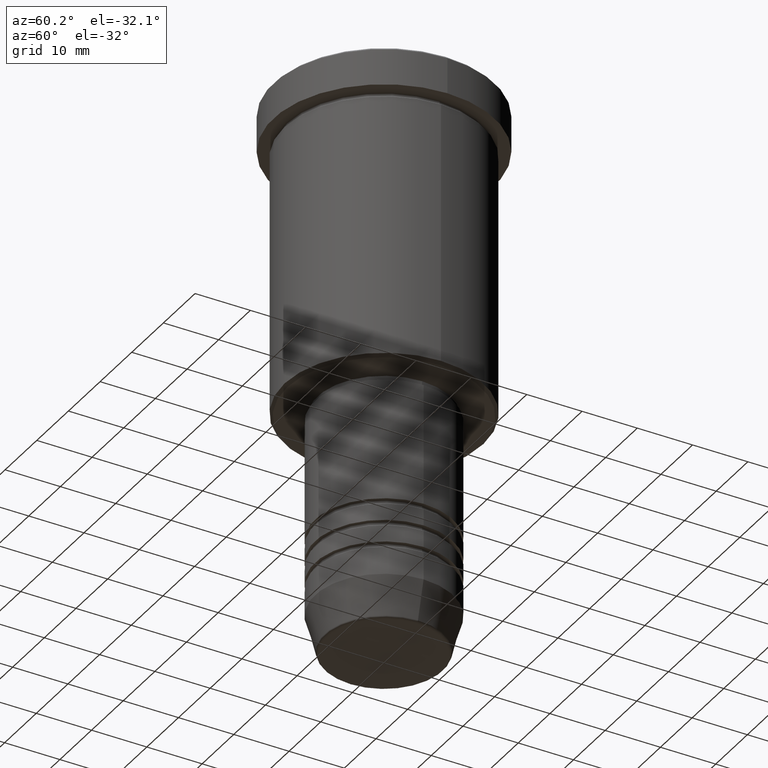
[diagram: clean part render]
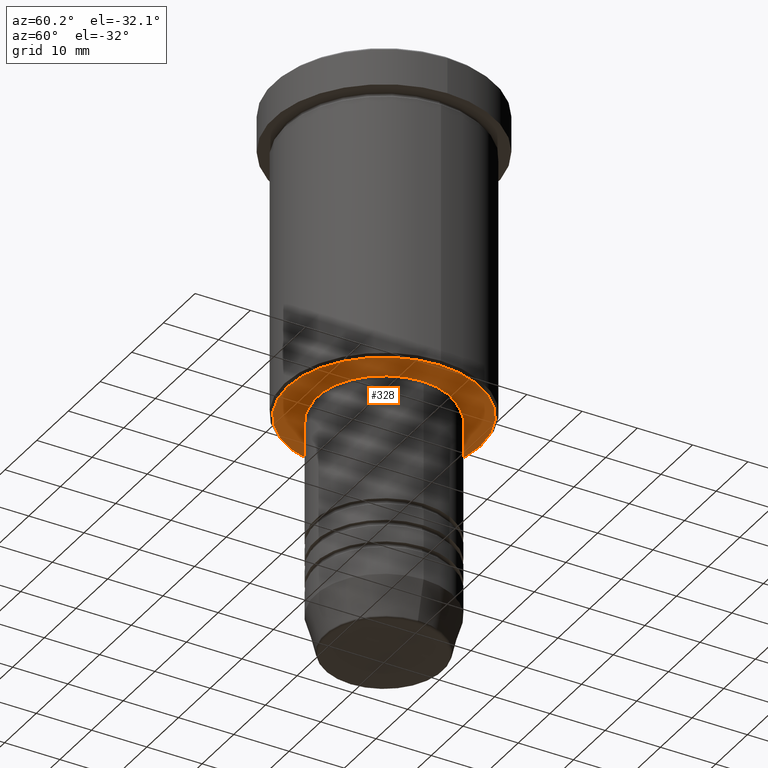
[diagram: same view with one face highlighted and labeled with its STEP entity id]
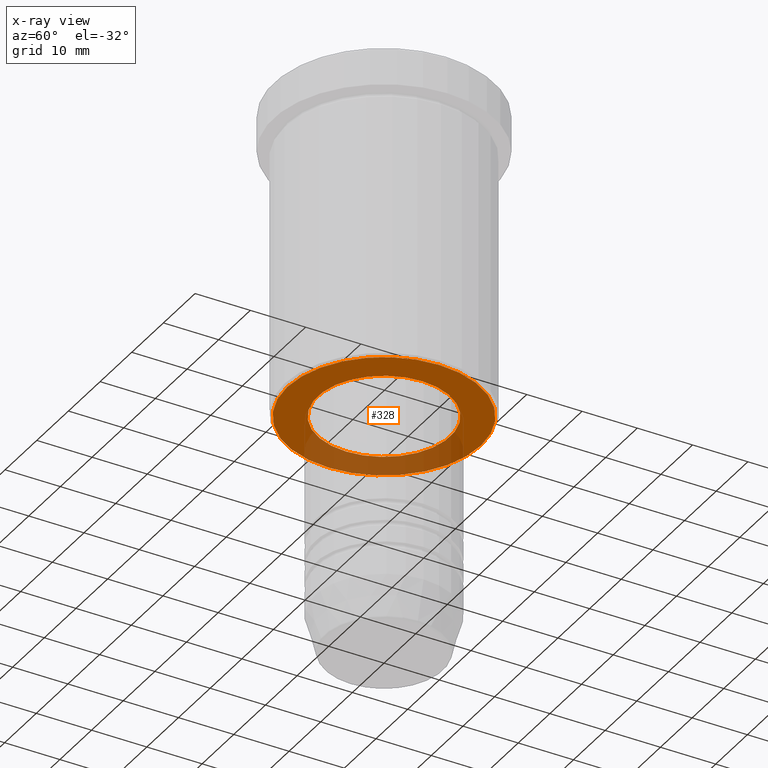
[diagram: x-ray of the same camera — body ghosted, the highlighted face saturated]
A machine part, auxiliary view. The second image highlights one B-rep face of the part: STEP entity #328.
The next image is the same camera in x-ray: the body ghosted, the highlighted face saturated — about 31% of this face is hidden behind the body in this view.
In plain terms, the highlighted planar face has unit normal (0, 0, -1).
Its self-contained STEP definition (entity closure, byte-faithful):
#28 = CIRCLE ( 'NONE', #335, 17.49999999999997513 ) ;
#73 = CIRCLE ( 'NONE', #354, 12.00000000000000000 ) ;
#97 = EDGE_CURVE ( 'NONE', #149, #936, #28, .T. ) ;
#113 = DIRECTION ( 'NONE',  ( -0.000000000000000000, -0.000000000000000000, 1.000000000000000000 ) ) ;
#149 = VERTEX_POINT ( 'NONE', #744 ) ;
#161 = CIRCLE ( 'NONE', #351, 12.00000000000000000 ) ;
#162 = VERTEX_POINT ( 'NONE', #503 ) ;
#204 = CARTESIAN_POINT ( 'NONE',  ( 0.000000000000000000, 0.000000000000000000, -56.00000000000000000 ) ) ;
#251 = CARTESIAN_POINT ( 'NONE',  ( 0.000000000000000000, 0.000000000000000000, -56.00000000000000000 ) ) ;
#299 = AXIS2_PLACEMENT_3D ( 'NONE', #1025, #563, #935 ) ;
#301 = FACE_OUTER_BOUND ( 'NONE', #681, .T. ) ;
#328 = ADVANCED_FACE ( 'NONE', ( #301, #851 ), #843, .T. ) ;
#335 = AXIS2_PLACEMENT_3D ( 'NONE', #987, #910, #523 ) ;
#337 = DIRECTION ( 'NONE',  ( 0.000000000000000000, 0.000000000000000000, -1.000000000000000000 ) ) ;
#351 = AXIS2_PLACEMENT_3D ( 'NONE', #1157, #691, #878 ) ;
#354 = AXIS2_PLACEMENT_3D ( 'NONE', #204, #113, #474 ) ;
#425 = EDGE_LOOP ( 'NONE', ( #597, #1039 ) ) ;
#474 = DIRECTION ( 'NONE',  ( 1.000000000000000000, 0.000000000000000000, 0.000000000000000000 ) ) ;
#495 = CIRCLE ( 'NONE', #1118, 17.49999999999997513 ) ;
#503 = CARTESIAN_POINT ( 'NONE',  ( 12.00000000000000000, 0.000000000000000000, -56.00000000000000000 ) ) ;
#523 = DIRECTION ( 'NONE',  ( -1.000000000000000000, 0.000000000000000000, 0.000000000000000000 ) ) ;
#534 = CARTESIAN_POINT ( 'NONE',  ( -12.00000000000000000, 1.469576158976823947E-15, -56.00000000000000000 ) ) ;
#546 = CARTESIAN_POINT ( 'NONE',  ( -17.49999999999997513, 2.173748068486550063E-15, -56.00000000000000000 ) ) ;
#563 = DIRECTION ( 'NONE',  ( 0.000000000000000000, 0.000000000000000000, -1.000000000000000000 ) ) ;
#597 = ORIENTED_EDGE ( 'NONE', *, *, #781, .T. ) ;
#618 = ORIENTED_EDGE ( 'NONE', *, *, #814, .T. ) ;
#681 = EDGE_LOOP ( 'NONE', ( #1138, #618 ) ) ;
#691 = DIRECTION ( 'NONE',  ( -0.000000000000000000, -0.000000000000000000, 1.000000000000000000 ) ) ;
#744 = CARTESIAN_POINT ( 'NONE',  ( 17.49999999999997513, 0.000000000000000000, -56.00000000000000000 ) ) ;
#770 = DIRECTION ( 'NONE',  ( -1.000000000000000000, 0.000000000000000000, 0.000000000000000000 ) ) ;
#781 = EDGE_CURVE ( 'NONE', #162, #938, #161, .T. ) ;
#814 = EDGE_CURVE ( 'NONE', #936, #149, #495, .T. ) ;
#843 = PLANE ( 'NONE',  #299 ) ;
#851 = FACE_BOUND ( 'NONE', #425, .T. ) ;
#878 = DIRECTION ( 'NONE',  ( 1.000000000000000000, 0.000000000000000000, 0.000000000000000000 ) ) ;
#910 = DIRECTION ( 'NONE',  ( 0.000000000000000000, 0.000000000000000000, -1.000000000000000000 ) ) ;
#935 = DIRECTION ( 'NONE',  ( -1.000000000000000000, 0.000000000000000000, -0.000000000000000000 ) ) ;
#936 = VERTEX_POINT ( 'NONE', #546 ) ;
#938 = VERTEX_POINT ( 'NONE', #534 ) ;
#987 = CARTESIAN_POINT ( 'NONE',  ( 0.000000000000000000, 0.000000000000000000, -56.00000000000000000 ) ) ;
#1025 = CARTESIAN_POINT ( 'NONE',  ( 0.000000000000000000, 18.00000000000000000, -56.00000000000000000 ) ) ;
#1039 = ORIENTED_EDGE ( 'NONE', *, *, #1054, .T. ) ;
#1054 = EDGE_CURVE ( 'NONE', #938, #162, #73, .T. ) ;
#1118 = AXIS2_PLACEMENT_3D ( 'NONE', #251, #337, #770 ) ;
#1138 = ORIENTED_EDGE ( 'NONE', *, *, #97, .T. ) ;
#1157 = CARTESIAN_POINT ( 'NONE',  ( 0.000000000000000000, 0.000000000000000000, -56.00000000000000000 ) ) ;